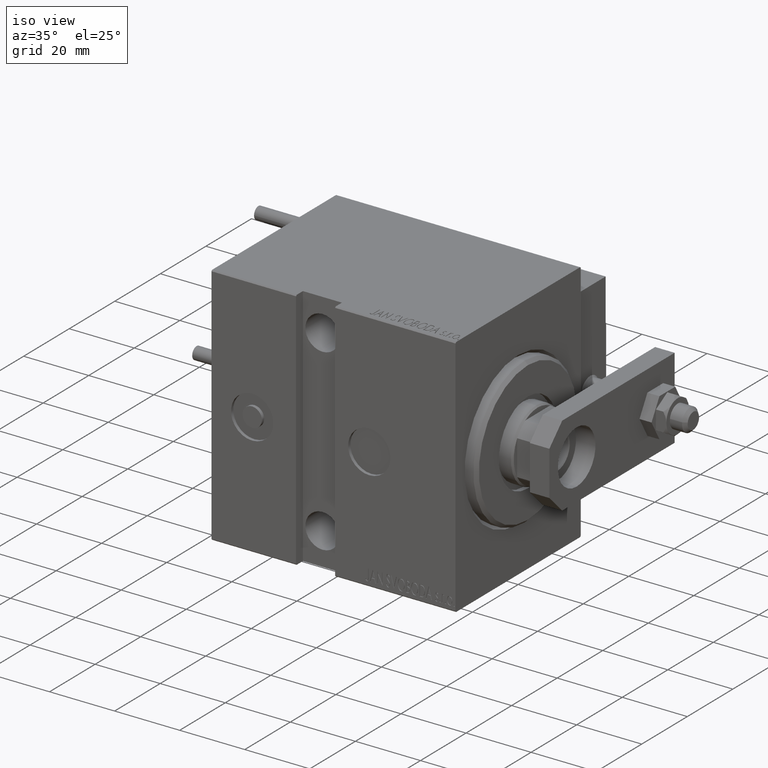
[diagram: clean part render]
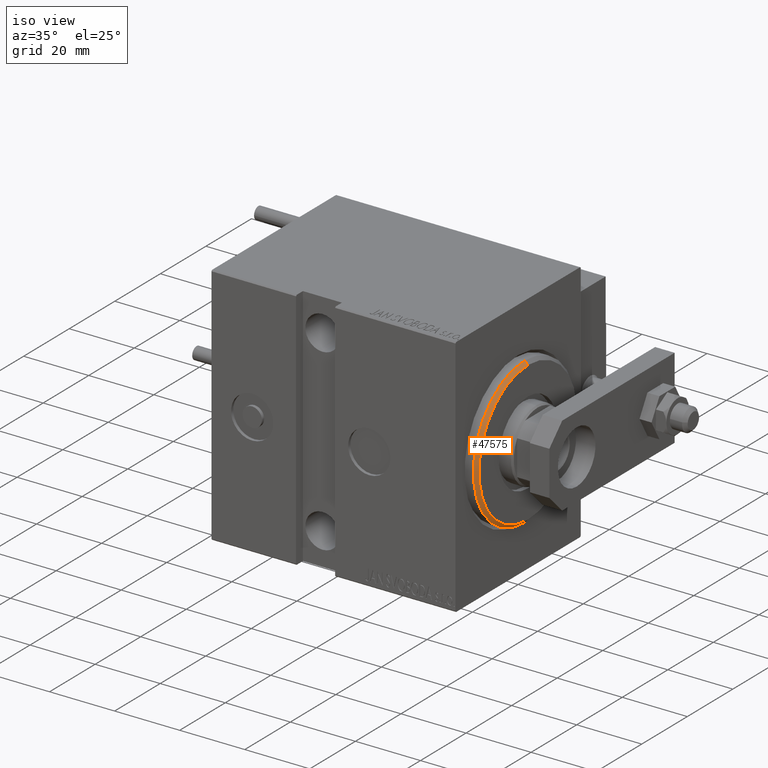
[diagram: same view with one face highlighted and labeled with its STEP entity id]
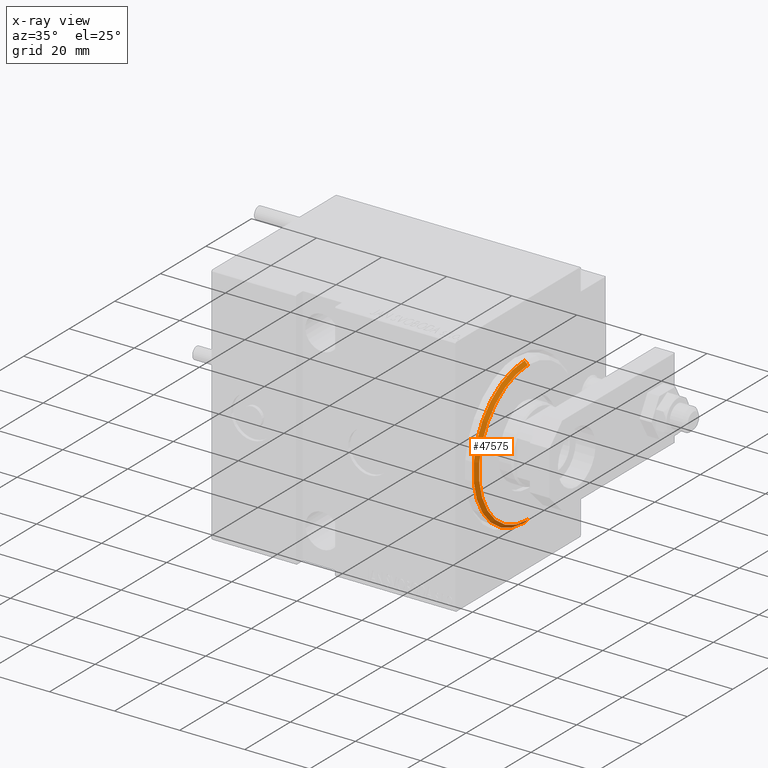
[diagram: x-ray of the same camera — body ghosted, the highlighted face saturated]
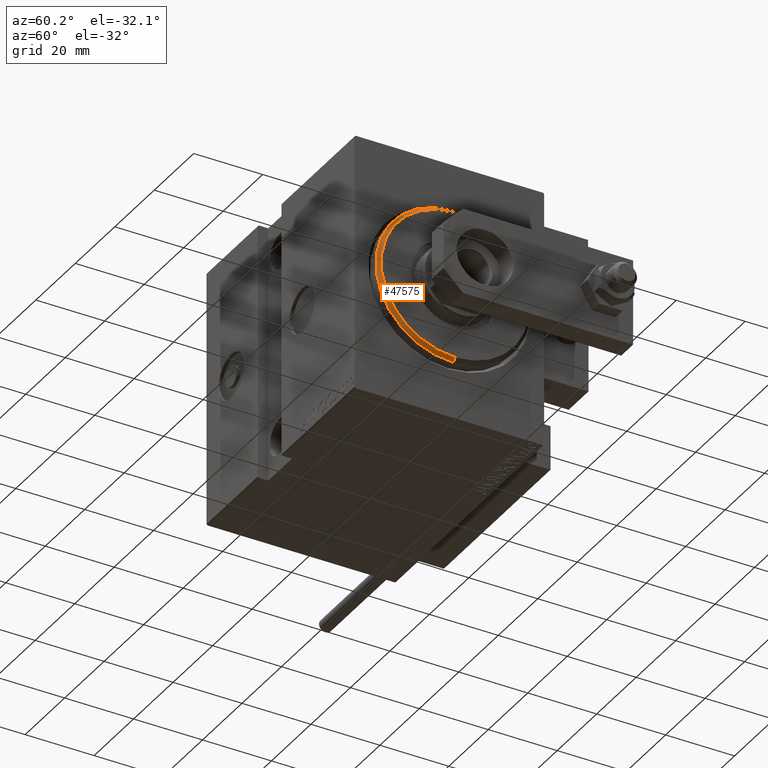
[diagram: same view with one face highlighted and labeled with its STEP entity id]
A machine part, iso view. The second image highlights one B-rep face of the part: STEP entity #47575.
The next image is the same camera in x-ray: the body ghosted, the highlighted face saturated — about 0% of this face is hidden behind the body in this view.
A second angle (auxiliary view) of the same face is appended — the face is thin or edge-on in the first view.
In plain terms, the highlighted conical surface has half-angle 45 deg.
Its self-contained STEP definition (entity closure, byte-faithful):
#91 = DIRECTION ( 'NONE',  ( -1.000000000000000000, 0.000000000000000000, 0.000000000000000000 ) ) ;
#184 = DIRECTION ( 'NONE',  ( -0.7071067811865487940, 0.000000000000000000, 0.7071067811865463515 ) ) ;
#1442 = AXIS2_PLACEMENT_3D ( 'NONE', #15829, #91, #23838 ) ;
#3814 = CIRCLE ( 'NONE', #12603, 21.49999999999998579 ) ;
#3925 = LINE ( 'NONE', #41981, #43476 ) ;
#12603 = AXIS2_PLACEMENT_3D ( 'NONE', #21866, #15097, #48430 ) ;
#13030 = EDGE_LOOP ( 'NONE', ( #42234, #20995, #49472, #47476 ) ) ;
#15097 = DIRECTION ( 'NONE',  ( 1.000000000000000000, -0.000000000000000000, 0.000000000000000000 ) ) ;
#15174 = VERTEX_POINT ( 'NONE', #15220 ) ;
#15220 = CARTESIAN_POINT ( 'NONE',  ( 1.999999999999978462, 0.000000000000000000, 22.50000000000000355 ) ) ;
#15829 = CARTESIAN_POINT ( 'NONE',  ( 3.000000000000000000, 0.000000000000000000, 0.000000000000000000 ) ) ;
#20077 = FACE_OUTER_BOUND ( 'NONE', #13030, .T. ) ;
#20995 = ORIENTED_EDGE ( 'NONE', *, *, #47356, .F. ) ;
#21866 = CARTESIAN_POINT ( 'NONE',  ( 3.000000000000000000, 0.000000000000000000, 0.000000000000000000 ) ) ;
#22187 = DIRECTION ( 'NONE',  ( -0.7071067811865487940, 8.659560562354918067E-17, -0.7071067811865463515 ) ) ;
#22610 = AXIS2_PLACEMENT_3D ( 'NONE', #32532, #28767, #32282 ) ;
#22945 = LINE ( 'NONE', #31231, #33796 ) ;
#23838 = DIRECTION ( 'NONE',  ( 0.000000000000000000, 0.000000000000000000, 1.000000000000000000 ) ) ;
#26144 = CARTESIAN_POINT ( 'NONE',  ( 3.000000000000000000, 0.000000000000000000, 21.49999999999998579 ) ) ;
#26184 = CONICAL_SURFACE ( 'NONE', #1442, 21.49999999999998579, 0.7853981633974466137 ) ;
#28219 = CIRCLE ( 'NONE', #22610, 22.50000000000000355 ) ;
#28702 = EDGE_CURVE ( 'NONE', #45596, #46960, #3925, .T. ) ;
#28767 = DIRECTION ( 'NONE',  ( -1.000000000000000000, 0.000000000000000000, 0.000000000000000000 ) ) ;
#30844 = EDGE_CURVE ( 'NONE', #46960, #15174, #28219, .T. ) ;
#31231 = CARTESIAN_POINT ( 'NONE',  ( 3.000000000000000000, 0.000000000000000000, 21.49999999999998579 ) ) ;
#31722 = VERTEX_POINT ( 'NONE', #26144 ) ;
#32282 = DIRECTION ( 'NONE',  ( 0.000000000000000000, 0.000000000000000000, -1.000000000000000000 ) ) ;
#32532 = CARTESIAN_POINT ( 'NONE',  ( 1.999999999999978462, 0.000000000000000000, 0.000000000000000000 ) ) ;
#33796 = VECTOR ( 'NONE', #184, 1000.000000000000000 ) ;
#33941 = EDGE_CURVE ( 'NONE', #31722, #15174, #22945, .T. ) ;
#37649 = CARTESIAN_POINT ( 'NONE',  ( 3.000000000000000000, 2.694222958124176415E-15, -21.49999999999998579 ) ) ;
#41981 = CARTESIAN_POINT ( 'NONE',  ( 3.000000000000000000, 2.632990618166807263E-15, -21.49999999999998579 ) ) ;
#42234 = ORIENTED_EDGE ( 'NONE', *, *, #28702, .F. ) ;
#43476 = VECTOR ( 'NONE', #22187, 1000.000000000000000 ) ;
#45343 = CARTESIAN_POINT ( 'NONE',  ( 1.999999999999978462, 2.755455298081545172E-15, -22.50000000000000355 ) ) ;
#45596 = VERTEX_POINT ( 'NONE', #37649 ) ;
#46960 = VERTEX_POINT ( 'NONE', #45343 ) ;
#47356 = EDGE_CURVE ( 'NONE', #31722, #45596, #3814, .T. ) ;
#47476 = ORIENTED_EDGE ( 'NONE', *, *, #30844, .F. ) ;
#47575 = ADVANCED_FACE ( 'NONE', ( #20077 ), #26184, .T. ) ;
#48430 = DIRECTION ( 'NONE',  ( 0.000000000000000000, 0.000000000000000000, -1.000000000000000000 ) ) ;
#49472 = ORIENTED_EDGE ( 'NONE', *, *, #33941, .T. ) ;